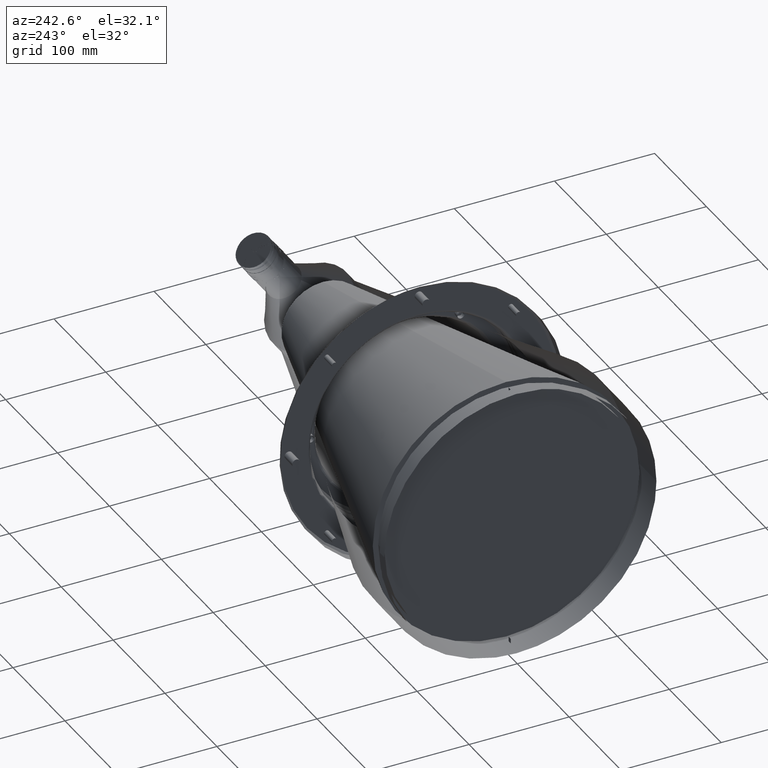
[diagram: clean part render]
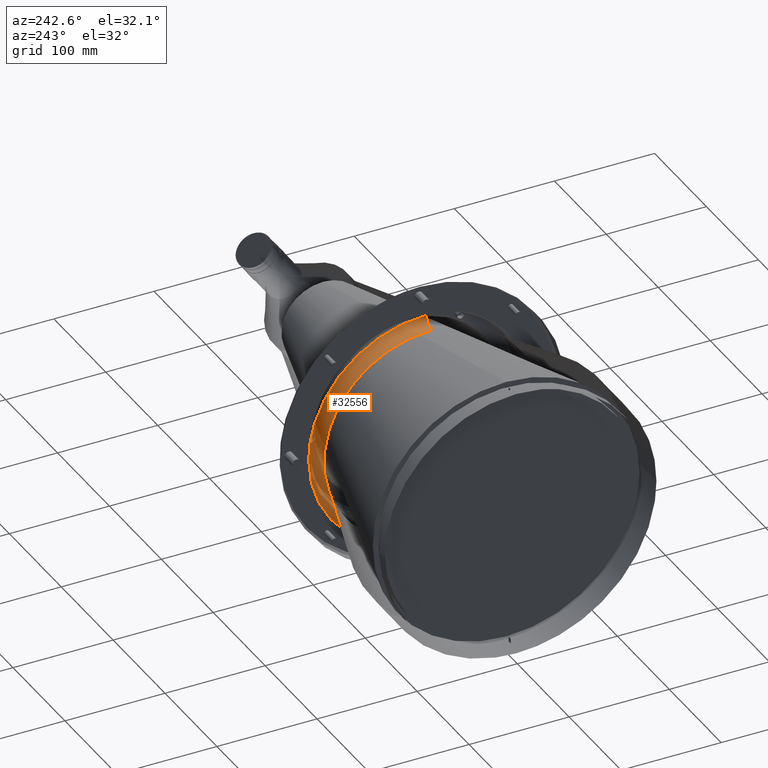
[diagram: same view with one face highlighted and labeled with its STEP entity id]
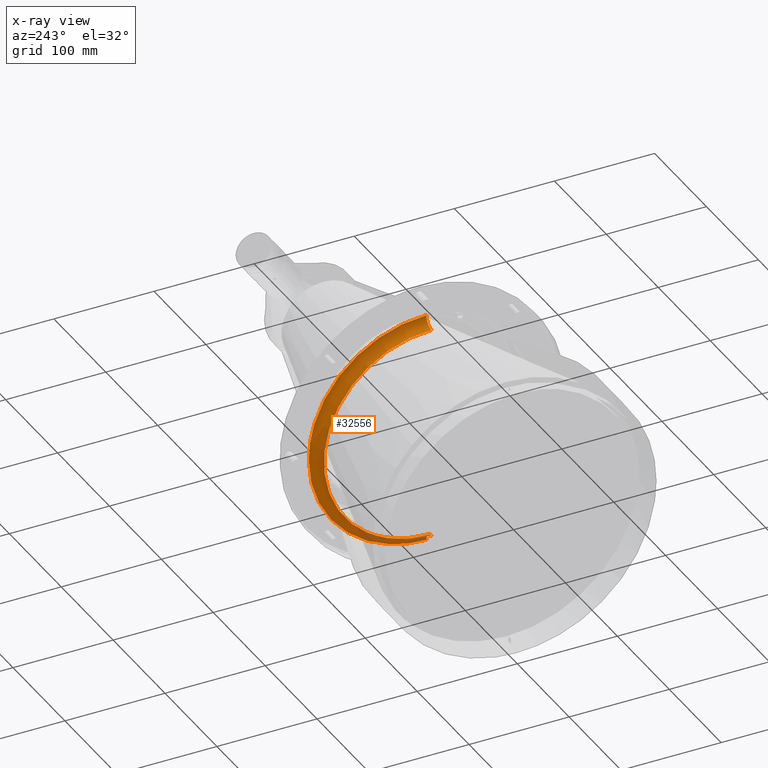
[diagram: x-ray of the same camera — body ghosted, the highlighted face saturated]
A machine part, auxiliary view. The second image highlights one B-rep face of the part: STEP entity #32556.
The next image is the same camera in x-ray: the body ghosted, the highlighted face saturated — about 10% of this face is hidden behind the body in this view.
In plain terms, the highlighted toroidal blend (fillet) surface has major radius 117.609 mm and minor (blend) radius 10 mm.
Its self-contained STEP definition (entity closure, byte-faithful):
#399 = CARTESIAN_POINT ( 'NONE',  ( 175.0000000000000000, 30.45441524278836098, 113.6627809745360622 ) ) ;
#663 = CARTESIAN_POINT ( 'NONE',  ( 175.0000000000769944, 4.776905207635640969E-12, 117.6089662600000025 ) ) ;
#919 = CARTESIAN_POINT ( 'NONE',  ( 175.0000000000000284, 37.82574638323964678, 111.4267463413851260 ) ) ;
#952 = TOROIDAL_SURFACE ( 'NONE', #30074, 117.6089662599529930, 10.00000000041579895 ) ;
#989 = DIRECTION ( 'NONE',  ( 1.000000000000000000, 1.875452609704882286E-13, 0.000000000000000000 ) ) ;
#2062 = VERTEX_POINT ( 'NONE', #28560 ) ;
#2373 = ORIENTED_EDGE ( 'NONE', *, *, #44644, .F. ) ;
#2755 = CARTESIAN_POINT ( 'NONE',  ( 175.0000000000000000, 62.13764023148551985, -99.92807691600786768 ) ) ;
#3285 = CARTESIAN_POINT ( 'NONE',  ( 175.0000000000000000, 111.4267463412574983, -37.82574638351241703 ) ) ;
#3546 = CARTESIAN_POINT ( 'NONE',  ( 175.0000000000000568, 3.851505344594348568, -117.6089498857985234 ) ) ;
#3613 = VERTEX_POINT ( 'NONE', #31932 ) ;
#4215 = ORIENTED_EDGE ( 'NONE', *, *, #48559, .F. ) ;
#4426 = CARTESIAN_POINT ( 'NONE',  ( 174.9999999999999716, 15.36065544787165393, 116.6651496972836384 ) ) ;
#4687 = CARTESIAN_POINT ( 'NONE',  ( 175.0000000000000000, 99.92807691549379001, 62.13764023231473033 ) ) ;
#6777 = CARTESIAN_POINT ( 'NONE',  ( 175.0000000000000000, 95.64851347251703828, -68.54245954266573904 ) ) ;
#7043 = CARTESIAN_POINT ( 'NONE',  ( 175.0000000000000000, 105.5374208332496835, -52.04375073451880951 ) ) ;
#7232 = DIRECTION ( 'NONE',  ( -1.000000000000000000, -1.875452609704883044E-13, 0.000000000000000000 ) ) ;
#7837 = CARTESIAN_POINT ( 'NONE',  ( 174.9999999999999432, 26.72186765502983974, -114.5977354736813396 ) ) ;
#8449 = CARTESIAN_POINT ( 'NONE',  ( 175.0000000000000284, 62.13763495119503233, 99.92803908885615272 ) ) ;
#8657 = CIRCLE ( 'NONE', #18907, 10.00000000041578829 ) ;
#8711 = CARTESIAN_POINT ( 'NONE',  ( 174.9999999999999432, 116.1005504288007018, 19.16687454358300613 ) ) ;
#8896 = ORIENTED_EDGE ( 'NONE', *, *, #29114, .T. ) ;
#9006 = EDGE_LOOP ( 'NONE', ( #25765, #32508, #2373, #4215, #8896 ) ) ;
#9230 = CARTESIAN_POINT ( 'NONE',  ( 175.0000000000000000, 110.1304391795578539, 41.44868219611966964 ) ) ;
#9369 = CARTESIAN_POINT ( 'NONE',  ( 174.9999999999955094, 117.6089662599588053, 1.283386079846524005E-15 ) ) ;
#11859 = CARTESIAN_POINT ( 'NONE',  ( 175.0000000000000284, 88.46960386168072432, -77.58760263230709597 ) ) ;
#12213 = CARTESIAN_POINT ( 'NONE',  ( 175.0000000000000000, 19.16686815638482955, 116.1005183094739550 ) ) ;
#12728 = CARTESIAN_POINT ( 'NONE',  ( 174.9999999999955094, 117.6089662599588053, 1.283386079846524005E-15 ) ) ;
#13252 = CARTESIAN_POINT ( 'NONE',  ( 175.0000000000000000, 117.4201931538461849, 7.694570589910792791 ) ) ;
#14326 = VERTEX_POINT ( 'NONE', #41188 ) ;
#14977 = B_SPLINE_CURVE_WITH_KNOTS ( 'NONE', 3,
 ( #663, #37411, #48974, #4426, #12213, #33647, #399, #919, #41679, #36888, #16755, #45182, #8449, #49236, #28556, #21295, #20775, #17020, #41415, #29609, #45972, #4687, #16493, #45440, #49498, #9230, #37152, #37674, #33122, #8711, #44923, #13252, #37923, #12728 ),
 .UNSPECIFIED., .F., .F.,
 ( 4, 2, 2, 2, 2, 2, 2, 2, 2, 2, 2, 2, 2, 2, 2, 2, 4 ),
 ( 0.000000000000000000, 0.06249999999999991673, 0.1249999999999998335, 0.1874999999999997502, 0.2499999999999996669, 0.3124999999999995559, 0.3749999999999995004, 0.4374999999999994449, 0.4999999999999993339, 0.5624999999999992228, 0.6249999999999991118, 0.6874999999999993339, 0.7499999999999994449, 0.8124999999999995559, 0.8749999999999996669, 0.9374999999999998890, 1.000000000000000000 ),
 .UNSPECIFIED. ) ;
#15352 = CARTESIAN_POINT ( 'NONE',  ( 175.0000000000000284, 101.9062756121483204, -58.83721509836041008 ) ) ;
#15617 = CARTESIAN_POINT ( 'NONE',  ( 175.0000000000000000, 93.35631679461533849, -71.63307407323252107 ) ) ;
#15924 = VERTEX_POINT ( 'NONE', #9369 ) ;
#16072 = CARTESIAN_POINT ( 'NONE',  ( 164.9999999996994688, 2.916803486534448636E-12, 117.6089662610470725 ) ) ;
#16493 = CARTESIAN_POINT ( 'NONE',  ( 174.9999999999999432, 101.9062467313706577, 58.83719965938652052 ) ) ;
#16755 = CARTESIAN_POINT ( 'NONE',  ( 174.9999999999999716, 52.04376546939847969, 105.5374129574595941 ) ) ;
#17020 = CARTESIAN_POINT ( 'NONE',  ( 175.0000000000000000, 85.88553469613997038, 80.43868360209394552 ) ) ;
#17405 = CIRCLE ( 'NONE', #19105, 107.6089662595371976 ) ;
#18907 = AXIS2_PLACEMENT_3D ( 'NONE', #16072, #35409, #7232 ) ;
#19105 = AXIS2_PLACEMENT_3D ( 'NONE', #31346, #35909, #43142 ) ;
#19113 = CARTESIAN_POINT ( 'NONE',  ( 175.0000000000000284, 7.694736861020370355, -117.4201767768501270 ) ) ;
#19897 = CARTESIAN_POINT ( 'NONE',  ( 175.0000000000000000, 116.1005183090206998, -19.16686815770671615 ) ) ;
#20163 = CARTESIAN_POINT ( 'NONE',  ( 175.0000000000000000, 15.36065223881862707, -116.6651171064647201 ) ) ;
#20775 = CARTESIAN_POINT ( 'NONE',  ( 175.0000000000000000, 80.43866044540602900, 85.88551153946906425 ) ) ;
#21295 = CARTESIAN_POINT ( 'NONE',  ( 175.0000000000000000, 77.58760263227713949, 88.46960386171258506 ) ) ;
#21617 = DIRECTION ( 'NONE',  ( 1.875452609704880015E-13, -1.000000000000000000, -1.634082373065903679E-25 ) ) ;
#23110 = CARTESIAN_POINT ( 'NONE',  ( 175.0000000000000284, 71.63309484854516995, -93.35634210969114122 ) ) ;
#23377 = CARTESIAN_POINT ( 'NONE',  ( 175.0000000000000000, 85.88551153844700536, -80.43866044642778945 ) ) ;
#23914 = CARTESIAN_POINT ( 'NONE',  ( 174.9999999999999716, 110.1304089246090001, -41.44866966203235137 ) ) ;
#24175 = CARTESIAN_POINT ( 'NONE',  ( 174.9999999999999432, 58.83719966127716106, -101.9062467304327129 ) ) ;
#25765 = ORIENTED_EDGE ( 'NONE', *, *, #38719, .F. ) ;
#26258 = EDGE_CURVE ( 'NONE', #49210, #14326, #40163, .T. ) ;
#27415 = CARTESIAN_POINT ( 'NONE',  ( 175.0000000000000000, 30.45442474843117608, -113.6628123130619343 ) ) ;
#27686 = CARTESIAN_POINT ( 'NONE',  ( 174.9999999999999716, 113.6627809746075428, -30.45441524251208065 ) ) ;
#27946 = CARTESIAN_POINT ( 'NONE',  ( 174.9999999999551221, 2.486294608482432372E-12, -117.6089662594367269 ) ) ;
#28556 = CARTESIAN_POINT ( 'NONE',  ( 175.0000000000000000, 71.63307407324786880, 93.35631679461040733 ) ) ;
#28560 = CARTESIAN_POINT ( 'NONE',  ( 164.9999999996907434, 2.915578839735246506E-12, 107.6089662606312629 ) ) ;
#29114 = EDGE_CURVE ( 'NONE', #3613, #2062, #8657, .T. ) ;
#29609 = CARTESIAN_POINT ( 'NONE',  ( 175.0000000000000000, 93.35634211018253836, 71.63309484771197333 ) ) ;
#30074 = AXIS2_PLACEMENT_3D ( 'NONE', #49495, #30129, #33390 ) ;
#30129 = DIRECTION ( 'NONE',  ( 1.000000000000000000, 1.875452609704880015E-13, -8.713002741898350444E-13 ) ) ;
#31346 = CARTESIAN_POINT ( 'NONE',  ( 164.9999999995970086, 2.902400542126319929E-12, 1.094075940955009918E-09 ) ) ;
#31456 = CARTESIAN_POINT ( 'NONE',  ( 174.9999999999999432, 37.82573687758983993, -111.4267150028616555 ) ) ;
#31724 = CARTESIAN_POINT ( 'NONE',  ( 175.0000000000000000, 117.4201441857388062, -7.694733654031232106 ) ) ;
#31932 = CARTESIAN_POINT ( 'NONE',  ( 175.0000000000769944, 4.776905207635640969E-12, 117.6089662600000025 ) ) ;
#32247 = CARTESIAN_POINT ( 'NONE',  ( 174.9999999999999716, 99.92804968645302210, -62.13762203785347538 ) ) ;
#32508 = ORIENTED_EDGE ( 'NONE', *, *, #26258, .F. ) ;
#32519 = CARTESIAN_POINT ( 'NONE',  ( 175.0000000000000284, 77.58758185697581666, -88.46957854663527598 ) ) ;
#32556 = ADVANCED_FACE ( 'NONE', ( #45970 ), #952, .T. ) ;
#33122 = CARTESIAN_POINT ( 'NONE',  ( 175.0000000000000000, 114.5977354736293137, 26.72186765570621603 ) ) ;
#33390 = DIRECTION ( 'NONE',  ( -8.713002741898350444E-13, 4.568705509687404842E-30, -1.000000000000000000 ) ) ;
#33647 = CARTESIAN_POINT ( 'NONE',  ( 175.0000000000000284, 26.72187404291218371, 114.5977675930200803 ) ) ;
#35409 = DIRECTION ( 'NONE',  ( -1.875452609704881024E-13, 1.000000000000000000, -1.224646797513270736E-16 ) ) ;
#35909 = DIRECTION ( 'NONE',  ( 1.000000000000000000, 1.875452609704880015E-13, -8.713002741898350444E-13 ) ) ;
#36010 = CARTESIAN_POINT ( 'NONE',  ( 175.0000000000000000, 48.56532357676051248, -107.1825943544756541 ) ) ;
#36888 = CARTESIAN_POINT ( 'NONE',  ( 175.0000000000000284, 48.56533610897901809, 107.1826246100382747 ) ) ;
#37152 = CARTESIAN_POINT ( 'NONE',  ( 175.0000000000000000, 111.4267150026646789, 37.82573687787313332 ) ) ;
#37411 = CARTESIAN_POINT ( 'NONE',  ( 175.0000000000000284, 3.851671601355735053, 117.6089662599997752 ) ) ;
#37674 = CARTESIAN_POINT ( 'NONE',  ( 175.0000000000000284, 113.6628123132014139, 30.45442474814966261 ) ) ;
#37923 = CARTESIAN_POINT ( 'NONE',  ( 175.0000000000000000, 117.6089662599590611, 3.852005739937666373 ) ) ;
#38719 = EDGE_CURVE ( 'NONE', #14326, #2062, #17405, .T. ) ;
#40163 = CIRCLE ( 'NONE', #47896, 10.00000000041578829 ) ;
#40273 = CARTESIAN_POINT ( 'NONE',  ( 175.0000000000000284, 80.43868360309498655, -85.88553469513881566 ) ) ;
#41188 = CARTESIAN_POINT ( 'NONE',  ( 164.9999999995032454, 2.902400542126318313E-12, -107.6089662584431323 ) ) ;
#41415 = CARTESIAN_POINT ( 'NONE',  ( 175.0000000000000000, 88.46957854611653715, 77.58758185782420469 ) ) ;
#41679 = CARTESIAN_POINT ( 'NONE',  ( 175.0000000000000000, 41.44866966158900112, 110.1304089248057352 ) ) ;
#42313 = B_SPLINE_CURVE_WITH_KNOTS ( 'NONE', 3,
 ( #48892, #48624, #31724, #48093, #19897, #43512, #27686, #3285, #23914, #44305, #7043, #15352, #32247, #6777, #15617, #11859, #23377, #40273, #32519, #23110, #48360, #2755, #24175, #47826, #36010, #44040, #31456, #27415, #7837, #52907, #20163, #19113, #3546, #27946 ),
 .UNSPECIFIED., .F., .F.,
 ( 4, 2, 2, 2, 2, 2, 2, 2, 2, 2, 2, 2, 2, 2, 2, 2, 4 ),
 ( 0.000000000000000000, 0.03125000000000004857, 0.06250000000000008327, 0.09375000000000011102, 0.1250000000000001388, 0.1562500000000001943, 0.1875000000000002220, 0.2187500000000002776, 0.2500000000000003331, 0.2812500000000003886, 0.3125000000000004441, 0.3437500000000003886, 0.3750000000000002776, 0.4062500000000002220, 0.4375000000000001665, 0.4687500000000001110, 0.5000000000000000000 ),
 .UNSPECIFIED. ) ;
#43142 = DIRECTION ( 'NONE',  ( -8.712873814200851957E-13, 0.000000000000000000, -1.000000000000000000 ) ) ;
#43512 = CARTESIAN_POINT ( 'NONE',  ( 175.0000000000000568, 114.5977675934093440, -26.72187404158357182 ) ) ;
#44040 = CARTESIAN_POINT ( 'NONE',  ( 175.0000000000000000, 41.44868219380050078, -110.1304391803711269 ) ) ;
#44305 = CARTESIAN_POINT ( 'NONE',  ( 175.0000000000000284, 107.1826246101870623, -48.56533610853502125 ) ) ;
#44644 = EDGE_CURVE ( 'NONE', #15924, #49210, #42313, .T. ) ;
#44923 = CARTESIAN_POINT ( 'NONE',  ( 174.9999999999999432, 116.6651007293947515, 15.36081850992803055 ) ) ;
#45182 = CARTESIAN_POINT ( 'NONE',  ( 175.0000000000000284, 58.83720036347649085, 101.9062834879788113 ) ) ;
#45440 = CARTESIAN_POINT ( 'NONE',  ( 175.0000000000000000, 105.5374497140293215, 52.04376617348984979 ) ) ;
#45772 = CARTESIAN_POINT ( 'NONE',  ( 164.9999999994945199, 2.902400542126320333E-12, -117.6089662588589277 ) ) ;
#45970 = FACE_OUTER_BOUND ( 'NONE', #9006, .T. ) ;
#45972 = CARTESIAN_POINT ( 'NONE',  ( 175.0000000000000000, 95.64848624347921202, 68.54244134820125112 ) ) ;
#47673 = CARTESIAN_POINT ( 'NONE',  ( 174.9999999999551221, 2.486294608482432372E-12, -117.6089662594367269 ) ) ;
#47826 = CARTESIAN_POINT ( 'NONE',  ( 175.0000000000000568, 52.04376617159181961, -105.5374497150092736 ) ) ;
#47896 = AXIS2_PLACEMENT_3D ( 'NONE', #45772, #21617, #989 ) ;
#48093 = CARTESIAN_POINT ( 'NONE',  ( 175.0000000000000284, 116.6651496975021445, -15.36065544580808684 ) ) ;
#48360 = CARTESIAN_POINT ( 'NONE',  ( 175.0000000000000000, 68.54244134901948371, -95.64848624299933988 ) ) ;
#48559 = EDGE_CURVE ( 'NONE', #3613, #15924, #14977, .T. ) ;
#48624 = CARTESIAN_POINT ( 'NONE',  ( 174.9999999999999716, 117.6089662599590611, -3.851671600851890975 ) ) ;
#48892 = CARTESIAN_POINT ( 'NONE',  ( 174.9999999999955094, 117.6089662599588053, 1.283386079846524005E-15 ) ) ;
#48974 = CARTESIAN_POINT ( 'NONE',  ( 175.0000000000000000, 7.694733651976342514, 117.4201441860303419 ) ) ;
#49210 = VERTEX_POINT ( 'NONE', #47673 ) ;
#49236 = CARTESIAN_POINT ( 'NONE',  ( 175.0000000000000853, 68.54244662931503740, 95.64852407014750213 ) ) ;
#49495 = CARTESIAN_POINT ( 'NONE',  ( 164.9999999995970086, 2.902400542126320333E-12, 1.094075940955009918E-09 ) ) ;
#49498 = CARTESIAN_POINT ( 'NONE',  ( 175.0000000000000000, 107.1825943552392033, 48.56532357444534398 ) ) ;
#52907 = CARTESIAN_POINT ( 'NONE',  ( 175.0000000000000000, 19.16687454425916926, -116.1005504288138468 ) ) ;